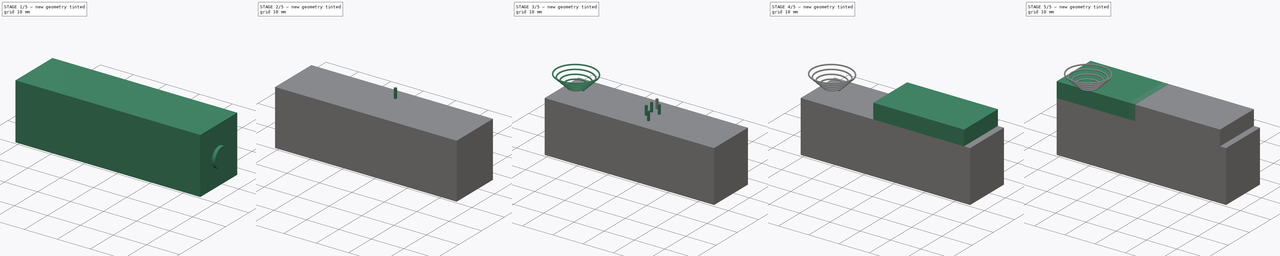
[diagram: build sequence overview — one tinted view per stage of 5, left to right]
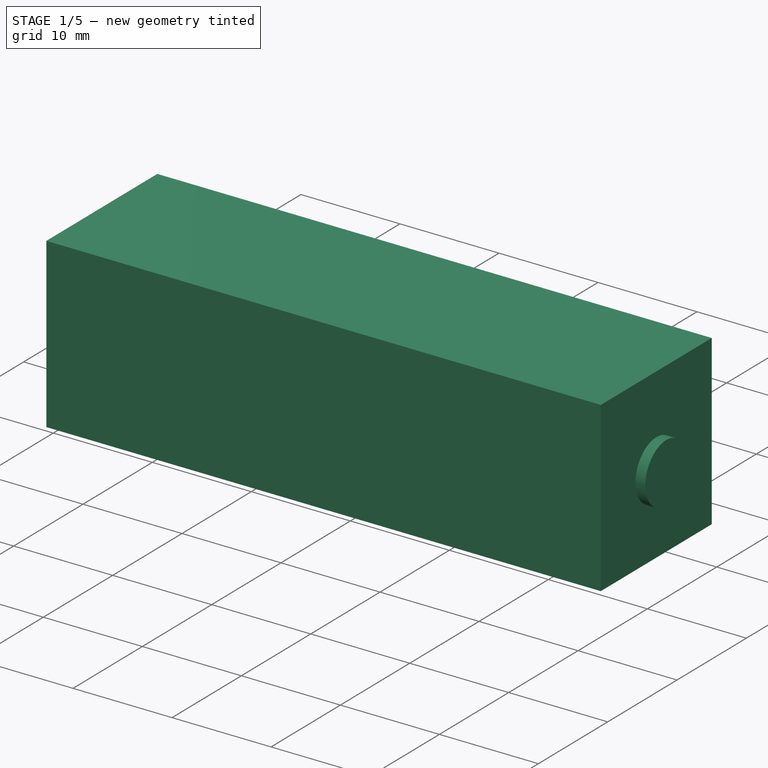
[diagram: stage 1 of 5 — iso view after this stage's code; geometry added in this stage tinted green]
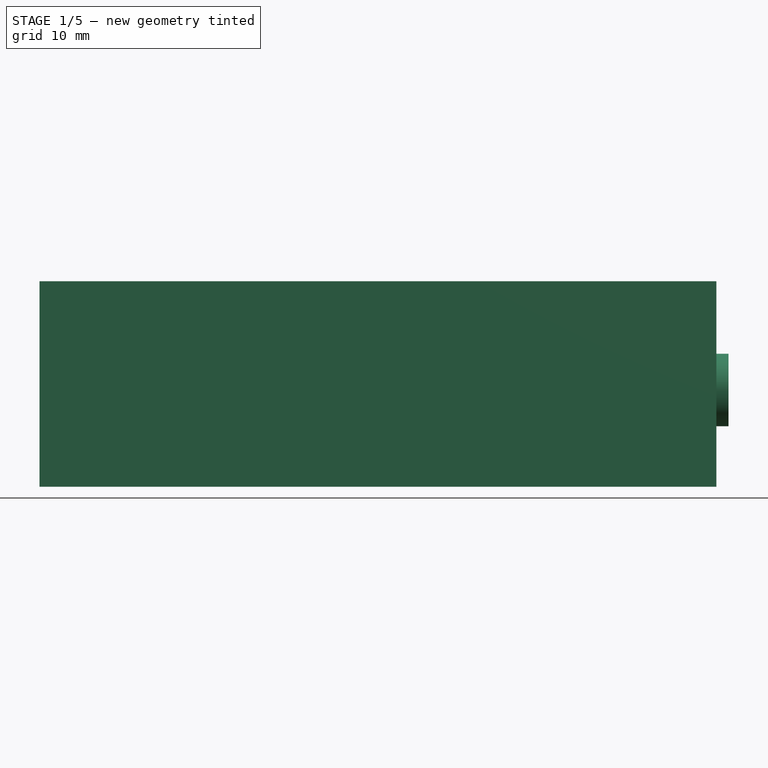
[diagram: stage 1 of 5 — front view after this stage's code; geometry added in this stage tinted green]
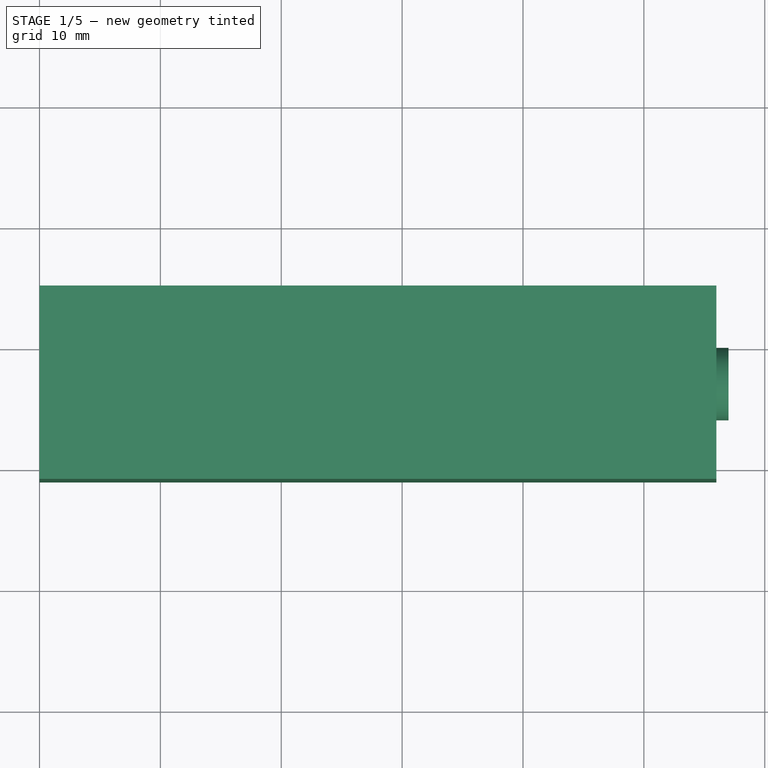
[diagram: stage 1 of 5 — top view after this stage's code; geometry added in this stage tinted green]
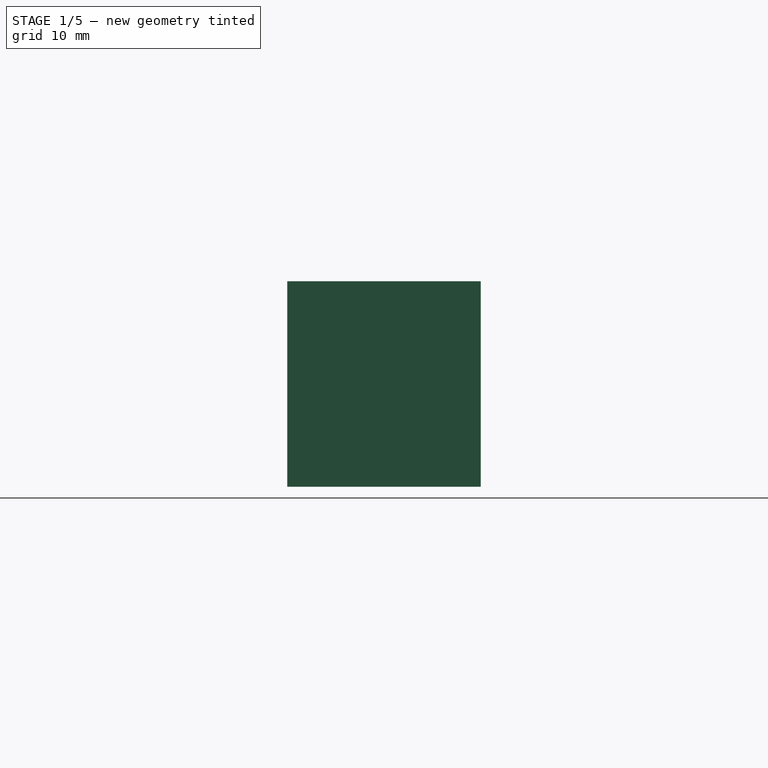
[diagram: stage 1 of 5 — right view after this stage's code; geometry added in this stage tinted green]
FCSTD DOCUMENT  (FreeCAD 0.17R13541 (Git))
Label: tings
License: All rights reserved
LicenseURL: http://en.wikipedia.org/wiki/All_rights_reserved
objects: Part::Box×24, App::Annotation×8, Part::Feature×6, App::Part×6, Part::Cut×4, Part::Fillet×4, Sketcher::SketchObject×2, Part::Helix×1, Part::Sweep×1, PartDesign::SubtractiveLoft×1, PartDesign::Body×1, Part::Cylinder×1
note: 46 computed .brp shape members not serialized (recipe doc carries the construction recipe); baked Part::Feature solids carry a one-line shape summary decoded from their .brp

FEATURE [PartDesign::SubtractiveLoft] SubtractiveLoft
  Closed = false
  Placement = pos=(18.55,10.51,-7) rot=(0,0,1;0rad)
  Profile = -> Box021 [Face6]
  Ruled = false
FEATURE [PartDesign::Body] Body
  Group = -> [Sketch001,SubtractiveLoft]
  Origin = -> Origin005
  Tip = -> SubtractiveLoft
FEATURE [App::Part] Part004  label="Spring"
  Group = -> [Sketch,Helix,Sweep,Body]
  License = CC BY 3.0
  LicenseURL = http://creativecommons.org/licenses/by/3.0/
  Origin = -> Origin006
  Placement = pos=(-4,7,-14) rot=(0,1,0;4.71239rad)
FEATURE [Part::Box] Box  label="Cube"
  AttacherType = Attacher::AttachEngine3D
  Height = 17
  Length = 4
  Placement = pos=(42,-1,-22) rot=(0,0,1;0rad)
  Width = 16
FEATURE [Part::Box] Box032  label="BatteryPack004"
  AttacherType = Attacher::AttachEngine3D
  Height = 15
  Length = 54
  Placement = pos=(-9,0,-21) rot=(0,0,1;0rad)
  Width = 14
FEATURE [Part::Box] Box033  label="BatteryPack005"
  AttacherType = Attacher::AttachEngine3D
  Height = 17
  Length = 54
  Placement = pos=(-10,-1,-22) rot=(0,0,1;0rad)
  Width = 16
FEATURE [Part::Cut] Cut001
  Base = -> Box033
  Tool = -> Box032
FEATURE [Part::Fillet] Fillet002
  Base = -> Cut001
  Edges = 1 edges r=6.9: [Edge18]
FEATURE [Part::Fillet] Fillet003
  Base = -> Fillet002
  Edges = 1 edges r=6.9: [Edge11]
FEATURE [Part::Cylinder] Cylinder
  Angle = 360
  AttacherType = Attacher::AttachEngine3D
  Height = 10
  Placement = pos=(47,7,-14) rot=(0,-1,0;1.5708rad)
  Radius = 3
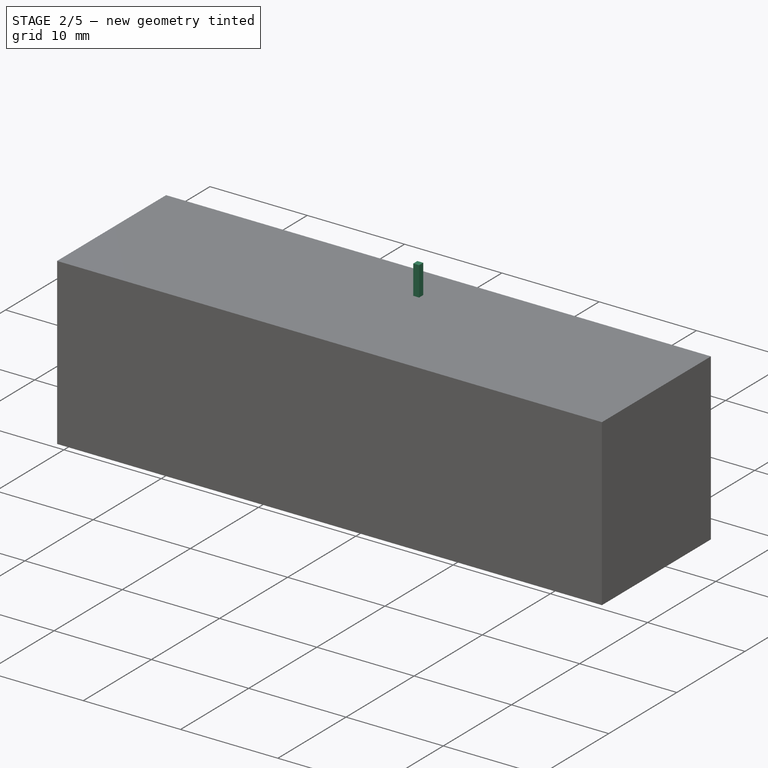
[diagram: stage 2 of 5 — iso view after this stage's code; geometry added in this stage tinted green]
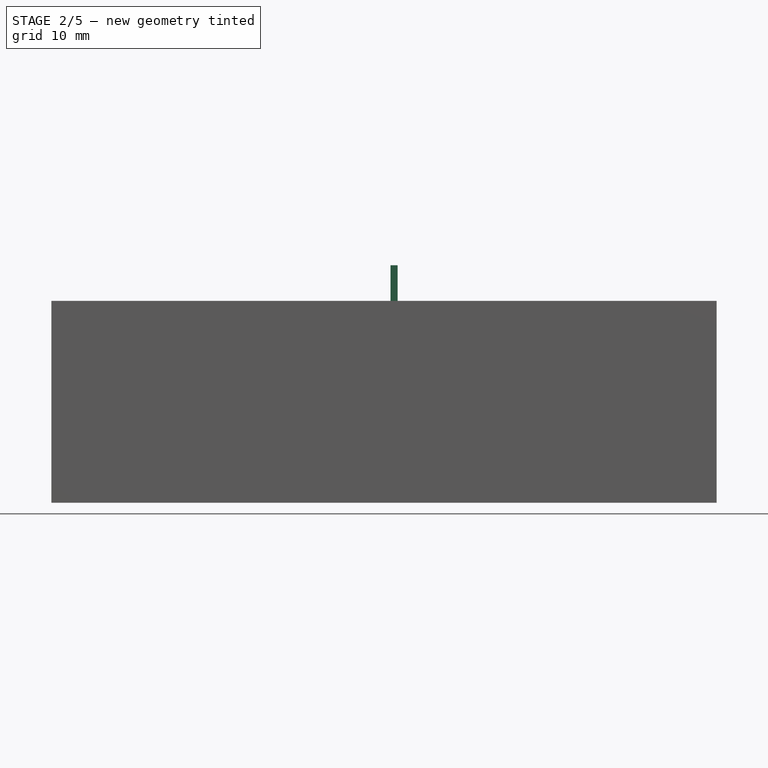
[diagram: stage 2 of 5 — front view after this stage's code; geometry added in this stage tinted green]
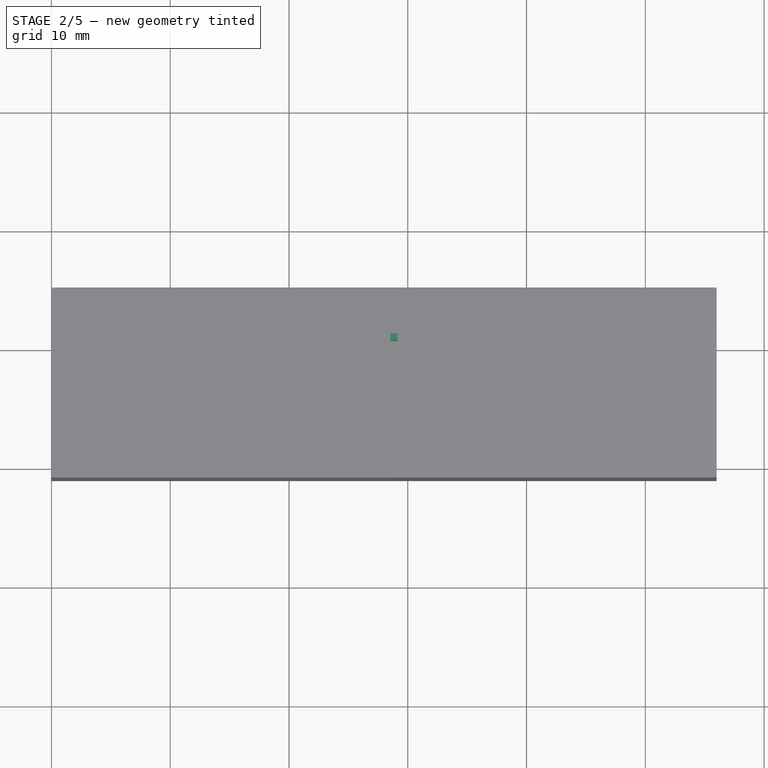
[diagram: stage 2 of 5 — top view after this stage's code; geometry added in this stage tinted green]
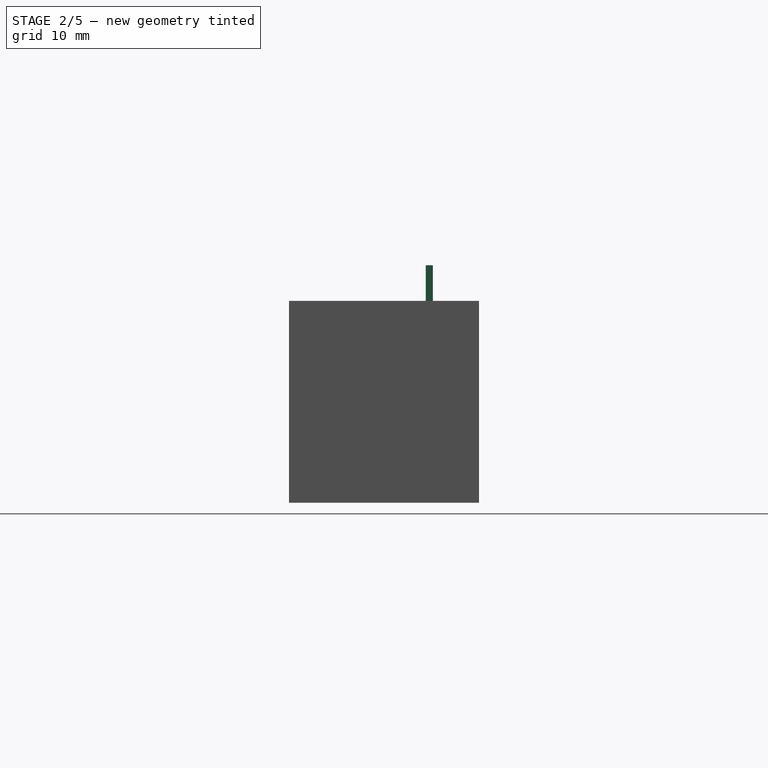
[diagram: stage 2 of 5 — right view after this stage's code; geometry added in this stage tinted green]
FEATURE [Part::Box] Box021  label="PO006"
  AttacherType = Attacher::AttachEngine3D
  Height = 5
  Length = 0.6
  Placement = pos=(18.55,10.51,-7) rot=(0,0,1;0rad)
  Width = 0.6
FEATURE [Part::Box] Box022  label="BatteryPack002"
  AttacherType = Attacher::AttachEngine3D
  Height = 17
  Length = 54
  Placement = pos=(-10,-1,-22) rot=(0,0,1;0rad)
  Width = 16
FEATURE [Sketcher::SketchObject] Sketch001
  MapMode = 5
  Placement = pos=(0,0,0) rot=(0.57735,0.57735,0.57735;2.0944rad)
  Support = -> [YZ_Plane005]
  sketch-geometry (4):
    g0: Circle [constr] CenterX=0 CenterY=5.04754 CenterZ=0 NormalX=0 NormalY=0 NormalZ=1 AngleXU=0 Radius=0.8
    g1: Circle [constr] CenterX=4.97888 CenterY=4.77664 CenterZ=0 NormalX=0 NormalY=0 NormalZ=1 AngleXU=0 Radius=0.8
    g2: Circle [constr] CenterX=6.73972 CenterY=1.76289 CenterZ=0 NormalX=0 NormalY=0 NormalZ=1 AngleXU=0 Radius=0.8
    g3: Circle [constr] CenterX=6.70586 CenterY=-1.99582 CenterZ=0 NormalX=0 NormalY=0 NormalZ=1 AngleXU=0 Radius=0.8
  constraints (5):
    c: PointOnObject(g0,g-2)
    c: Radius(g0) = 0.8
    c: Equal(g0,g1)
    c: Equal(g0,g2)
    c: Equal(g0,g3)
FEATURE [Part::Box] Box031  label="BatteryPack003"
  AttacherType = Attacher::AttachEngine3D
  Height = 15
  Length = 54
  Placement = pos=(-9,0,-21) rot=(0,0,1;0rad)
  Width = 14
FEATURE [Part::Cut] Cut
  Base = -> Box022
  Tool = -> Box031
FEATURE [Part::Fillet] Fillet
  Base = -> Cut
  Edges = 1 edges r=6.9: [Edge18]
FEATURE [Part::Cut] Cut002
  Base = -> Box
  Placement = pos=(4,0,0) rot=(0,0,1;0rad)
  Tool = -> Fillet003
FEATURE [Part::Cut] Cut003  label="Cap"
  Base = -> Cut002
  Placement = pos=(-4,0,0) rot=(0,0,1;0rad)
  Tool = -> Cylinder
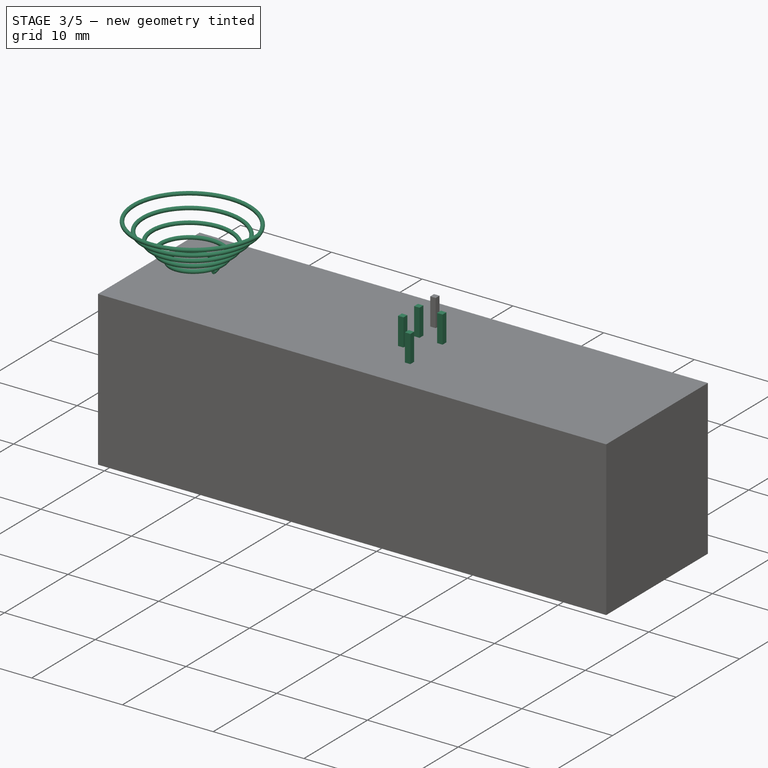
[diagram: stage 3 of 5 — iso view after this stage's code; geometry added in this stage tinted green]
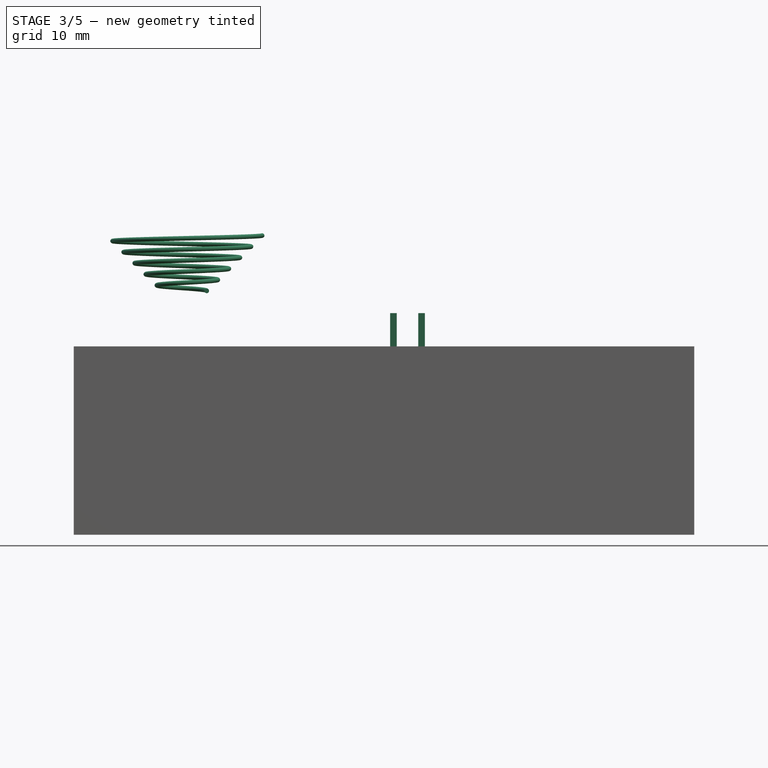
[diagram: stage 3 of 5 — front view after this stage's code; geometry added in this stage tinted green]
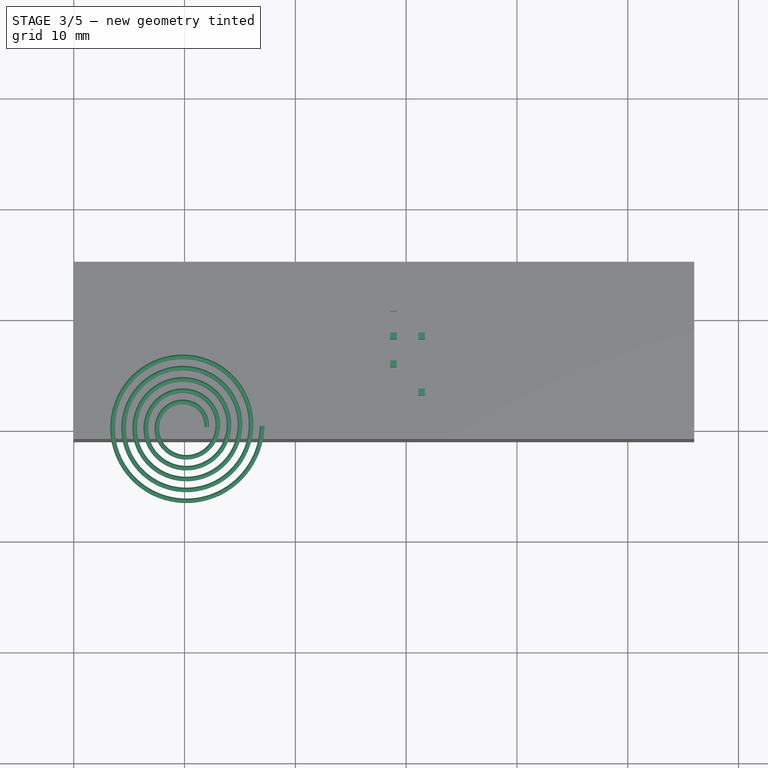
[diagram: stage 3 of 5 — top view after this stage's code; geometry added in this stage tinted green]
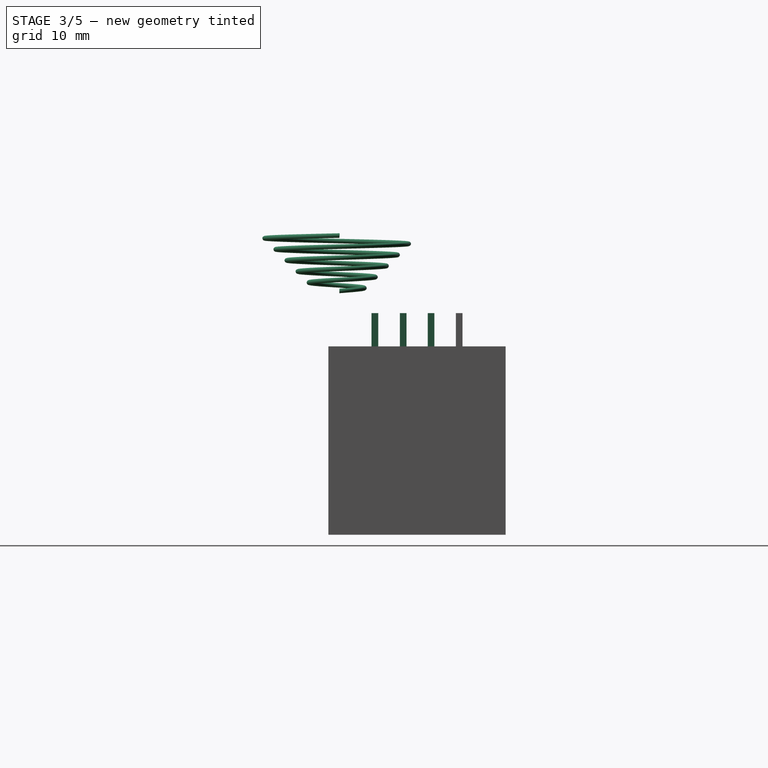
[diagram: stage 3 of 5 — right view after this stage's code; geometry added in this stage tinted green]
FEATURE [Part::Box] Box017  label="PO002"
  AttacherType = Attacher::AttachEngine3D
  Height = 5
  Length = 0.6
  Placement = pos=(21.09,7.97,-7) rot=(0,0,1;0rad)
  Width = 0.6
FEATURE [Part::Box] Box018  label="PO003"
  AttacherType = Attacher::AttachEngine3D
  Height = 5
  Length = 0.6
  Placement = pos=(21.09,2.9,-7) rot=(0,0,1;0rad)
  Width = 0.6
FEATURE [Part::Box] Box019  label="PO004"
  AttacherType = Attacher::AttachEngine3D
  Height = 5
  Length = 0.6
  Placement = pos=(18.55,7.97,-7) rot=(0,0,1;0rad)
  Width = 0.6
FEATURE [Part::Box] Box020  label="PO005"
  AttacherType = Attacher::AttachEngine3D
  Height = 5
  Length = 0.6
  Placement = pos=(18.55,5.45,-7) rot=(0,0,1;0rad)
  Width = 0.6
FEATURE [App::Part] Part001  label="Pins002"
  Group = -> [Box028,Box026,Box030,Box029,Box025,Box024,Box027,Box023]
  License = CC BY 3.0
  LicenseURL = http://creativecommons.org/licenses/by/3.0/
  Origin = -> Origin002
  Placement = pos=(-10,0,0) rot=(0,0,1;0rad)
FEATURE [App::Part] Part002  label="Button"
  Group = -> [Box003,Part__Feature013,Part001]
  License = CC BY 3.0
  LicenseURL = http://creativecommons.org/licenses/by/3.0/
  Origin = -> Origin003
FEATURE [App::Part] Part003  label="Controller"
  Group = -> [Box004,ESP8266_ESP01_step14,Part]
  License = CC BY 3.0
  LicenseURL = http://creativecommons.org/licenses/by/3.0/
  Origin = -> Origin004
  Placement = pos=(2,0,0) rot=(0,0,1;0rad)
FEATURE [Part::Helix] Helix
  Angle = 45
  AttacherType = Attacher::AttachEngine3D
  Height = 5
  LocalCoord = 0
  Pitch = 1
  Radius = 2
  Style = 1
FEATURE [Sketcher::SketchObject] Sketch
  MapMode = 5
  Placement = pos=(0,0,0) rot=(1,0,0;1.5708rad)
  Support = -> [XZ_Plane005]
  sketch-geometry (1):
    g0: Circle CenterX=1.99846 CenterY=0.004556 CenterZ=0 NormalX=0 NormalY=0 NormalZ=1 AngleXU=0 Radius=0.205214
FEATURE [Part::Sweep] Sweep
  Frenet = true
  Sections = -> [Sketch]
  Solid = true
  Spine = -> Helix [Edge1,Edge2,Edge3,Edge4,Edge5]
  Transition = 1
FEATURE [Part::Fillet] Fillet001
  Base = -> Fillet
  Edges = 1 edges r=6.9: [Edge11]
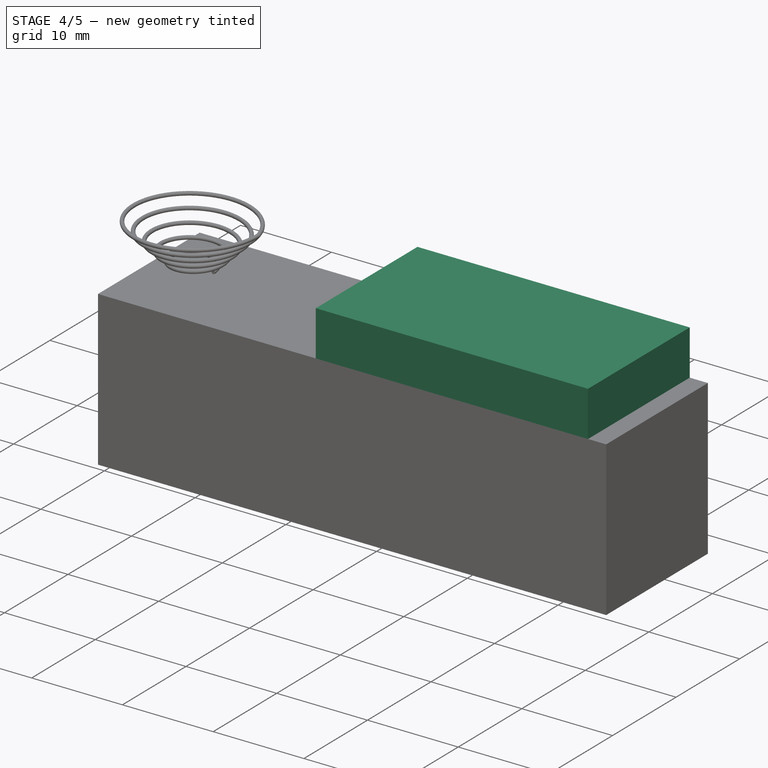
[diagram: stage 4 of 5 — iso view after this stage's code; geometry added in this stage tinted green]
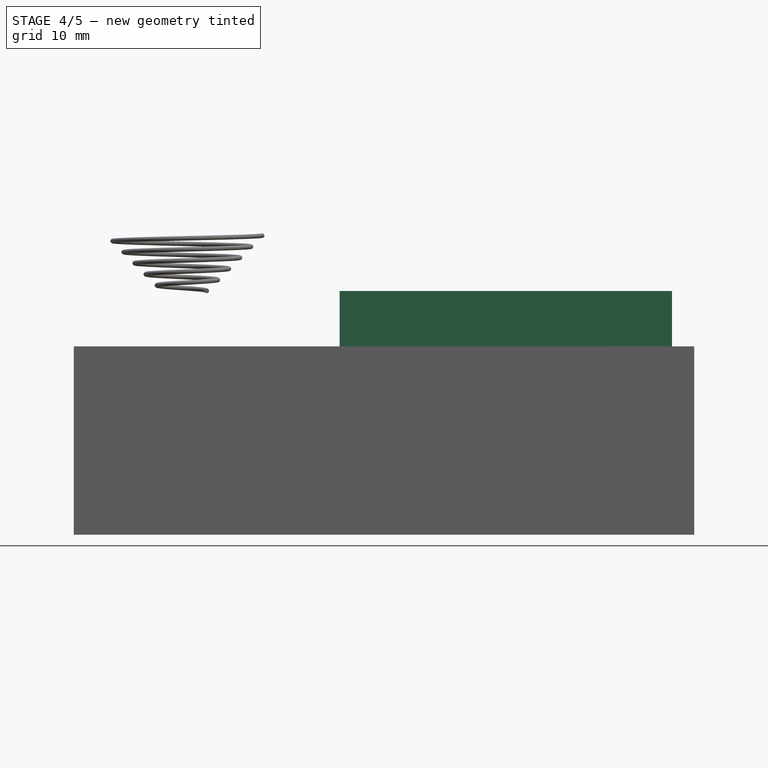
[diagram: stage 4 of 5 — front view after this stage's code; geometry added in this stage tinted green]
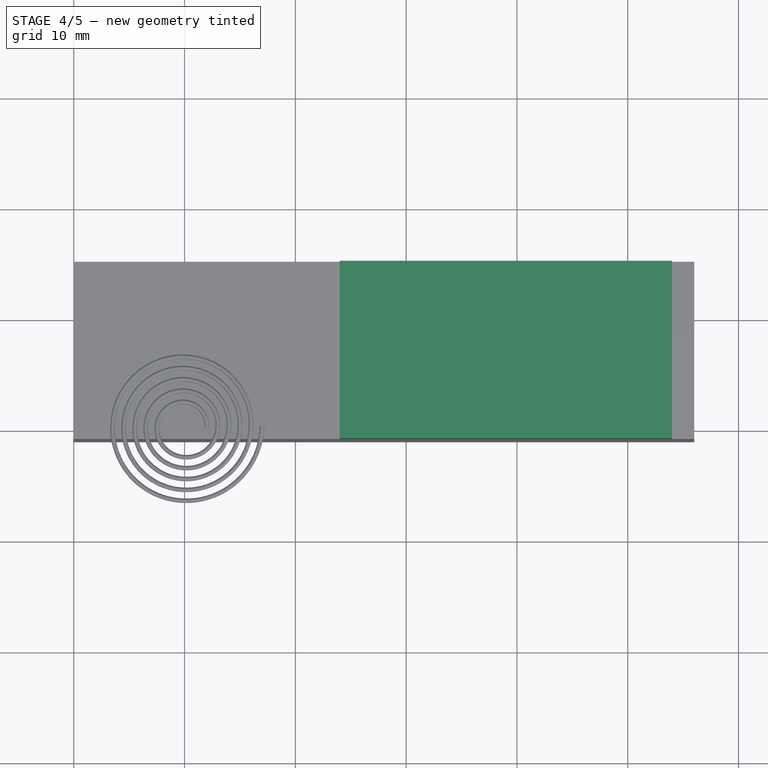
[diagram: stage 4 of 5 — top view after this stage's code; geometry added in this stage tinted green]
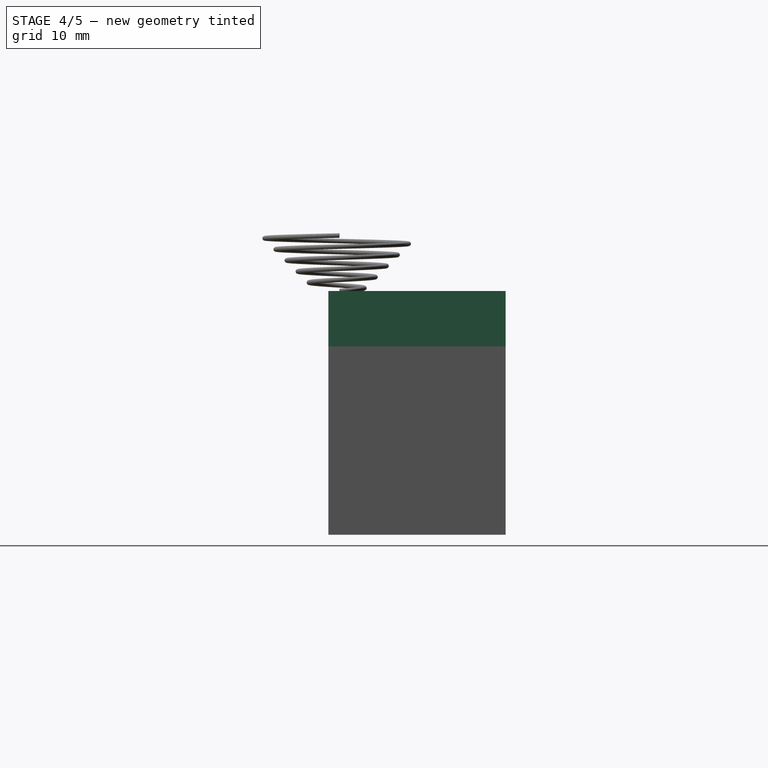
[diagram: stage 4 of 5 — right view after this stage's code; geometry added in this stage tinted green]
FEATURE [Part::Box] Box004  label="Cube004"
  AttacherType = Attacher::AttachEngine3D
  Height = 5
  Length = 30
  Placement = pos=(14,-1,-5) rot=(0,0,1;0rad)
  Width = 16
FEATURE [Part::Box] Box006  label="vcc"
  AttacherType = Attacher::AttachEngine3D
  Height = 5
  Length = 0.6
  Placement = pos=(18.55,2.9,-7) rot=(0,0,1;0rad)
  Width = 0.6
FEATURE [Part::Box] Box009  label="PO"
  AttacherType = Attacher::AttachEngine3D
  Height = 5
  Length = 0.6
  Placement = pos=(21.09,5.45,-7) rot=(0,0,1;0rad)
  Width = 0.6
FEATURE [Part::Feature] Part__Feature013  label="Tactal Switch - SMD (6mmx 6mmx__mm)"
  Placement = pos=(2,7,-5) rot=(0,0,1;0rad)
  shape: bbox 9.035 x 6.05 x 11.02 mm, 213 faces (baked)
FEATURE [Part::Box] Box016  label="PO001"
  AttacherType = Attacher::AttachEngine3D
  Height = 5
  Length = 0.6
  Placement = pos=(21.09,10.51,-7) rot=(0,0,1;0rad)
  Width = 0.6
FEATURE [Part::Box] Box028  label="PO011"
  AttacherType = Attacher::AttachEngine3D
  Height = 5
  Length = 0.6
  Placement = pos=(18.55,10.51,-7) rot=(0,0,1;0rad)
  Width = 0.6
FEATURE [Part::Box] Box029  label="PO012"
  AttacherType = Attacher::AttachEngine3D
  Height = 5
  Length = 0.6
  Placement = pos=(18.55,5.45,-7) rot=(0,0,1;0rad)
  Width = 0.6
FEATURE [Part::Box] Box030  label="PO013"
  AttacherType = Attacher::AttachEngine3D
  Height = 5
  Length = 0.6
  Placement = pos=(18.55,7.97,-7) rot=(0,0,1;0rad)
  Width = 0.6
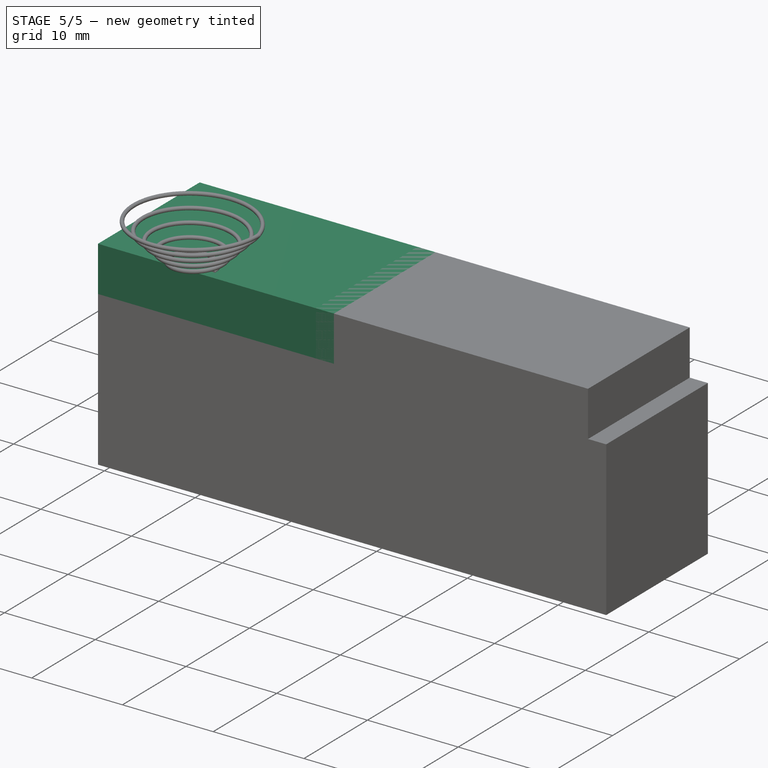
[diagram: stage 5 of 5 — iso view after this stage's code; geometry added in this stage tinted green]
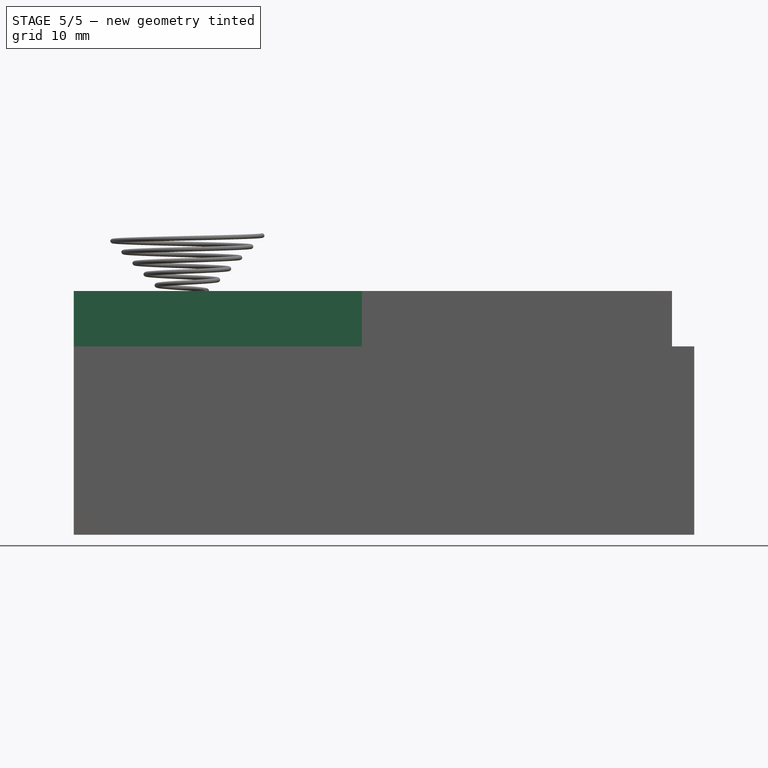
[diagram: stage 5 of 5 — front view after this stage's code; geometry added in this stage tinted green]
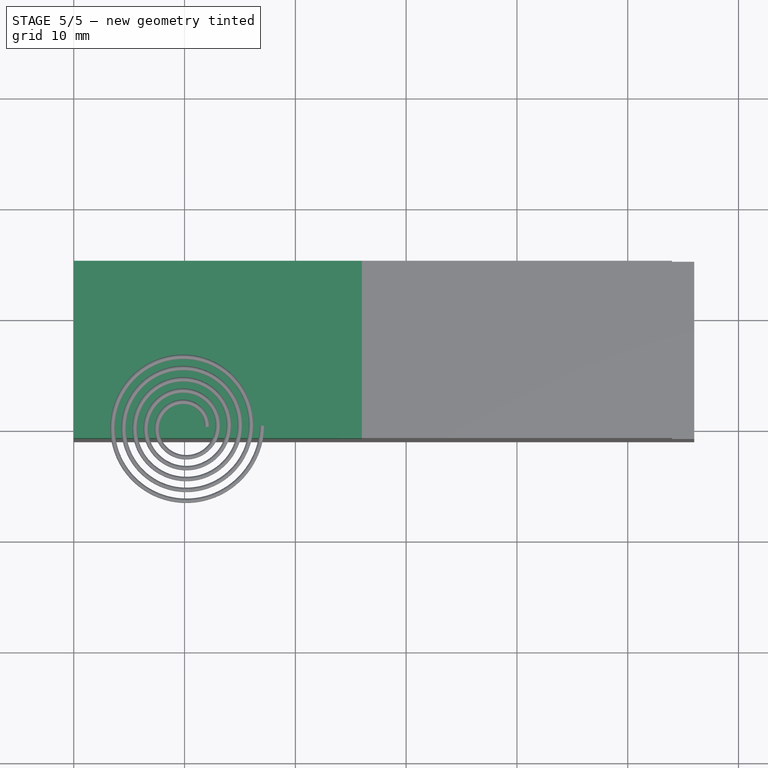
[diagram: stage 5 of 5 — top view after this stage's code; geometry added in this stage tinted green]
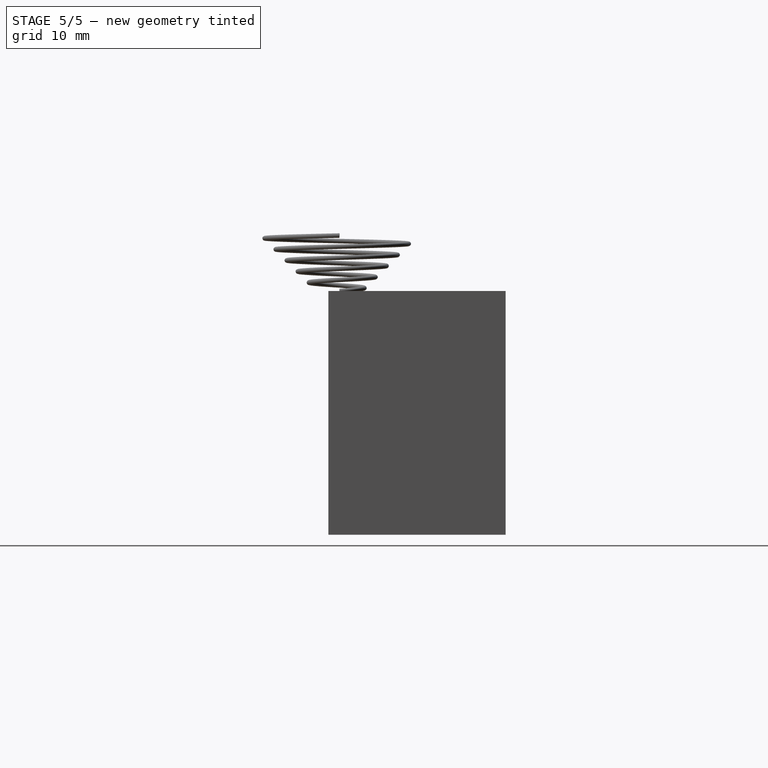
[diagram: stage 5 of 5 — right view after this stage's code; geometry added in this stage tinted green]
FEATURE [Part::Feature] Part__Feature  label="Platine"
  shape: bbox 25 x 14.5 x 1.1 mm, 22 faces (baked)
FEATURE [Part::Feature] Part__Feature002  label="PCB_Antenna"
  Placement = pos=(1,16,0.81) rot=(0.57735,-0.57735,-0.57735;2.0944rad)
  shape: bbox 8.664 x 11.4 x 0.036 mm, 45 faces (baked)
FEATURE [Part::Feature] Part__Feature011  label="SerialFlashMem"
  Placement = pos=(8.2,0.1,1.1) rot=(0,0,1;0rad)
  shape: bbox 7.9 x 5.23 x 1.95 mm, 110 faces, 5 solids (baked)
FEATURE [Part::Feature] Part__Feature012  label="ESP8266EX"
  Placement = pos=(8,6.5,1.1) rot=(0,0,1;0rad)
  shape: bbox 5 x 5 x 0.95 mm, 6 faces (baked)
FEATURE [Part::Feature] Part__Feature014  label="AA - Batery"
  Placement = pos=(-6.7,7,-14) rot=(0,0,-1;1.5708rad)
  shape: bbox 49.95 x 15.31 x 15.31 mm, 54 faces (baked)
FEATURE [App::Annotation] Text  label="VCC_label"
  LabelText = VCC
  Position = (1.1,2.3,1)
FEATURE [App::Annotation] Text002  label="RST"
  LabelText = RST
  Position = (1.1,5.2,1)
FEATURE [App::Annotation] Text003  label="PD"
  LabelText = PD
  Position = (1.1,7.9,1)
FEATURE [App::Annotation] Text004  label="TX"
  LabelText = TX
  Position = (1.1,10.3,1)
FEATURE [App::Annotation] Text005  label="RX"
  LabelText = RX
  Position = (6.1,2.67,1)
FEATURE [App::Annotation] Text006  label="PO_label"
  LabelText = PO
  Position = (6.1,5.4,1)
FEATURE [App::Annotation] Text007  label="P1"
  LabelText = P1
  Position = (6.1,8.1,1)
FEATURE [App::Annotation] Text008  label="GND"
  LabelText = GND
  Position = (6.1,9.9,1)
FEATURE [App::Part] ESP8266_ESP01_step14  label="ESP8266_ESP01"
  Group = -> [Part__Feature,Part__Feature002,Part__Feature011,Part__Feature012,Text,Text002,Text003,Text004,Text005,Text006,Text007,Text008]
  License = CC BY 3.0
  LicenseURL = http://creativecommons.org/licenses/by/3.0/
  Origin = -> Origin
  Placement = pos=(17,-0.25,-4) rot=(1,0,0;0rad)
FEATURE [Part::Box] Box003  label="Cube003"
  AttacherType = Attacher::AttachEngine3D
  Height = 5
  Length = 26
  Placement = pos=(-10,-1,-5) rot=(0,0,1;0rad)
  Width = 16
FEATURE [Part::Box] Box005  label="PCB"
  AttacherType = Attacher::AttachEngine3D
  Height = 1
  Length = 18
  Placement = pos=(7,0,-7) rot=(0,0,1;0rad)
  Width = 14
FEATURE [App::Part] Part  label="Pins1"
  Group = -> [Box021,Box017,Box019,Box020,Box018,Box016,Box006,Box009]
  License = CC BY 3.0
  LicenseURL = http://creativecommons.org/licenses/by/3.0/
  Origin = -> Origin001
FEATURE [Part::Box] Box023  label="PO007"
  AttacherType = Attacher::AttachEngine3D
  Height = 5
  Length = 0.6
  Placement = pos=(21.09,5.45,-7) rot=(0,0,1;0rad)
  Width = 0.6
FEATURE [Part::Box] Box024  label="PO008"
  AttacherType = Attacher::AttachEngine3D
  Height = 5
  Length = 0.6
  Placement = pos=(21.09,10.51,-7) rot=(0,0,1;0rad)
  Width = 0.6
FEATURE [Part::Box] Box025  label="PO009"
  AttacherType = Attacher::AttachEngine3D
  Height = 5
  Length = 0.6
  Placement = pos=(21.09,2.9,-7) rot=(0,0,1;0rad)
  Width = 0.6
FEATURE [Part::Box] Box026  label="PO010"
  AttacherType = Attacher::AttachEngine3D
  Height = 5
  Length = 0.6
  Placement = pos=(21.09,7.97,-7) rot=(0,0,1;0rad)
  Width = 0.6
FEATURE [Part::Box] Box027  label="vcc001"
  AttacherType = Attacher::AttachEngine3D
  Height = 5
  Length = 0.6
  Placement = pos=(18.55,2.9,-7) rot=(0,0,1;0rad)
  Width = 0.6
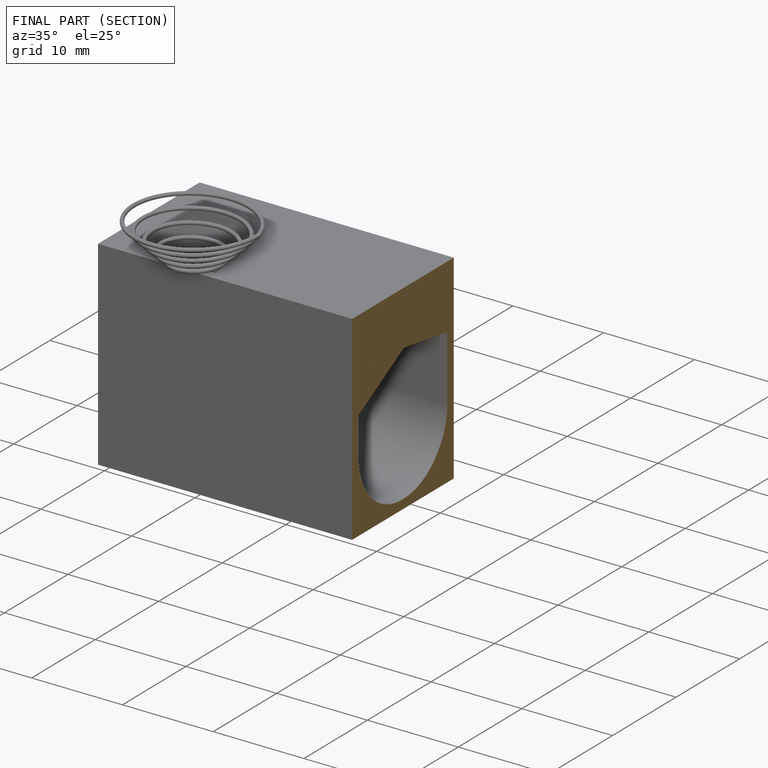
[diagram: finished part — half-section view (interior)]
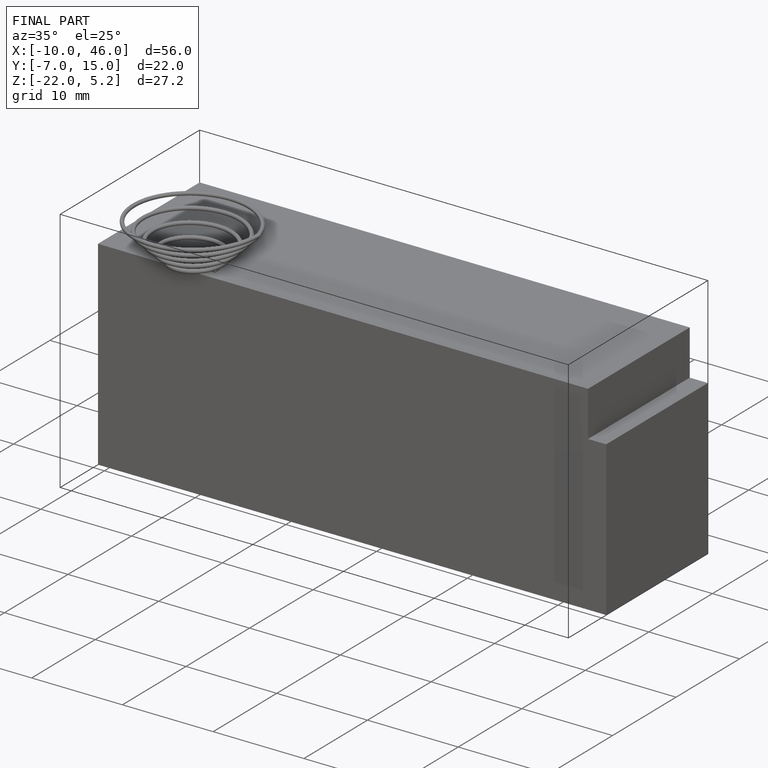
[diagram: finished part — iso view with bounding-box wireframe]
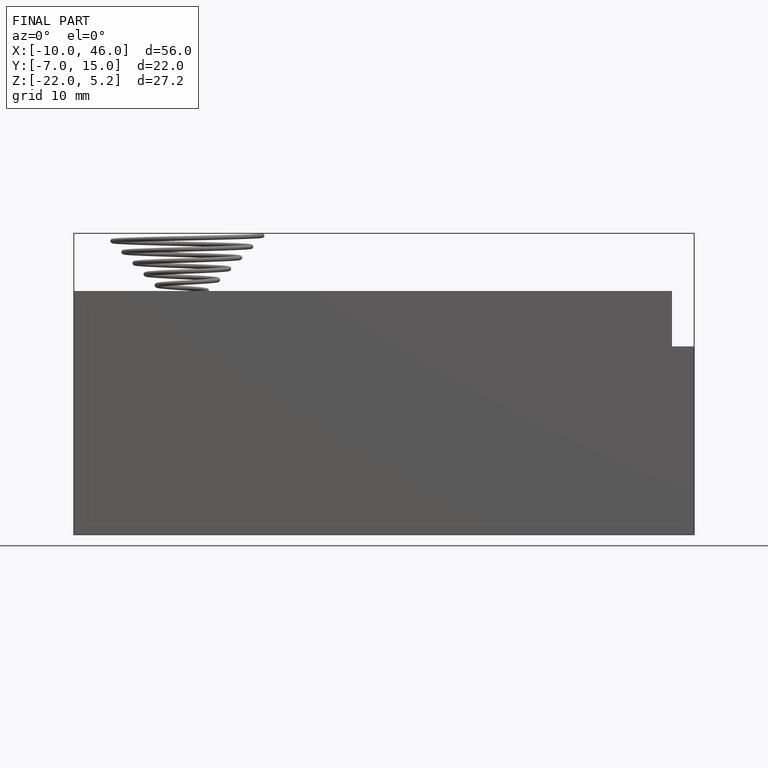
[diagram: finished part — front view with bounding-box wireframe]
